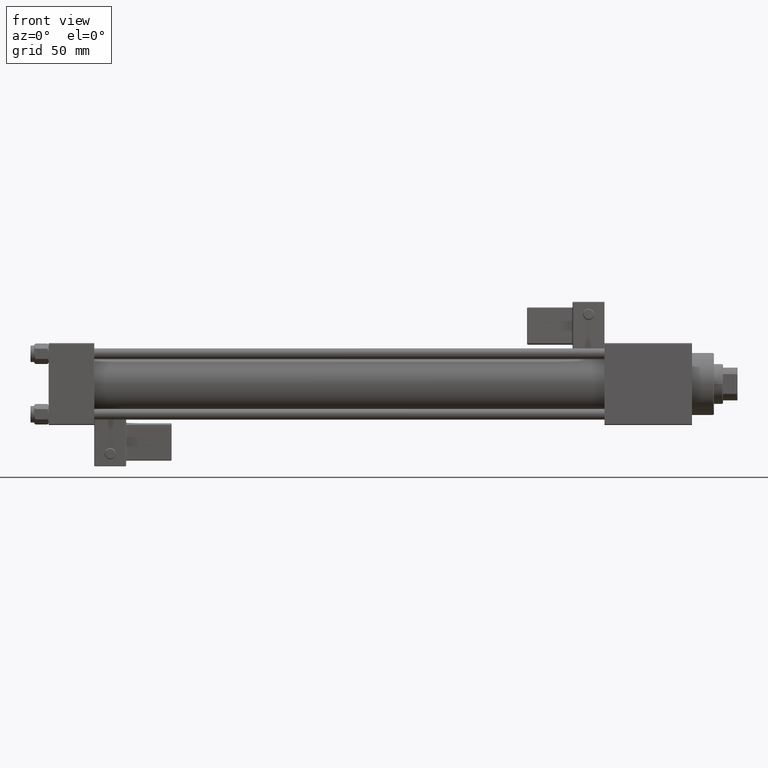
[diagram: clean part render]
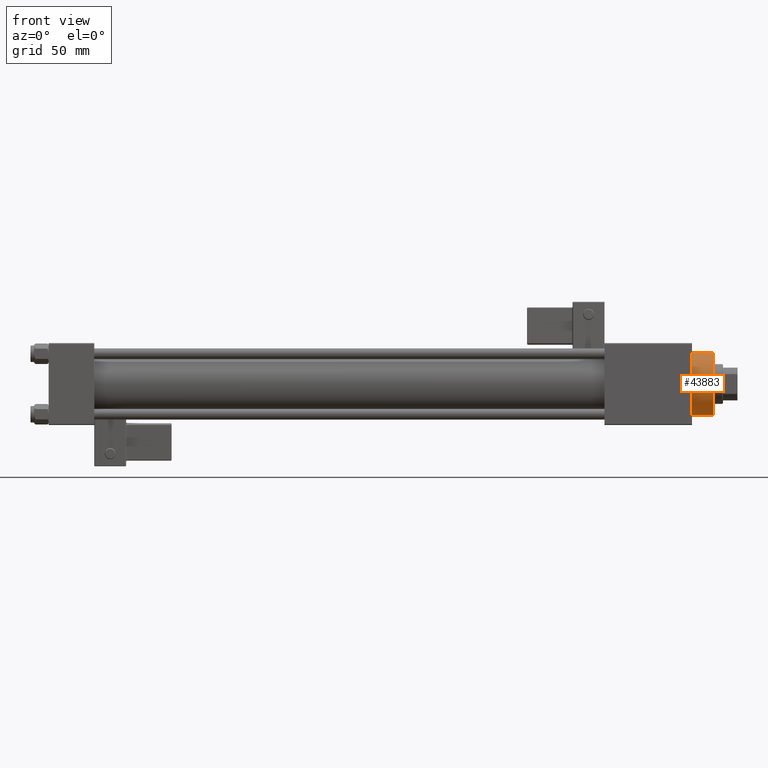
[diagram: same view with one face highlighted and labeled with its STEP entity id]
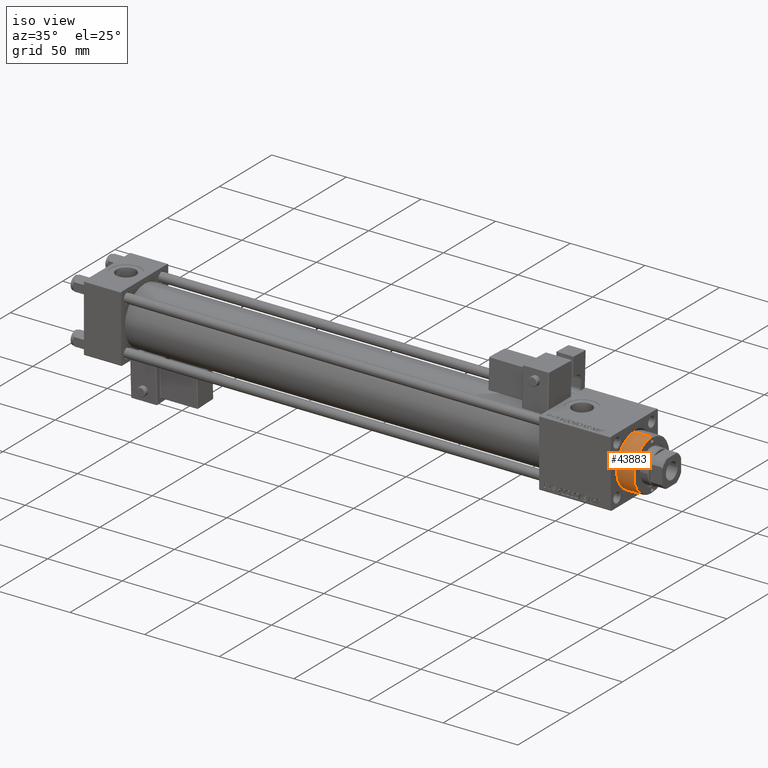
[diagram: same view with one face highlighted and labeled with its STEP entity id]
A machine part, front view. The second image highlights one B-rep face of the part: STEP entity #43883.
A second angle (iso view) of the same face is appended — the face is thin or edge-on in the first view.
In plain terms, the highlighted cylindrical surface (edge-blend (fillet) strip) has radius 17 mm, axis along (-1, -0, -0).
Its self-contained STEP definition (entity closure, byte-faithful):
#3040 = VERTEX_POINT ( 'NONE', #50135 ) ;
#3531 = DIRECTION ( 'NONE',  ( 1.000000000000000000, 0.000000000000000000, 0.000000000000000000 ) ) ;
#4114 = DIRECTION ( 'NONE',  ( -0.000000000000000000, -0.000000000000000000, -1.000000000000000000 ) ) ;
#5173 = DIRECTION ( 'NONE',  ( -1.000000000000000000, 0.000000000000000000, 0.000000000000000000 ) ) ;
#5244 = DIRECTION ( 'NONE',  ( 1.000000000000000000, 0.000000000000000000, 0.000000000000000000 ) ) ;
#5526 = EDGE_CURVE ( 'NONE', #24858, #3040, #16647, .T. ) ;
#8196 = LINE ( 'NONE', #8981, #49361 ) ;
#8981 = CARTESIAN_POINT ( 'NONE',  ( -17.00000000000000000, 0.000000000000000000, 40.70000000000000284 ) ) ;
#9241 = FACE_OUTER_BOUND ( 'NONE', #46963, .T. ) ;
#9569 = DIRECTION ( 'NONE',  ( 0.000000000000000000, 0.000000000000000000, 1.000000000000000000 ) ) ;
#13055 = CARTESIAN_POINT ( 'NONE',  ( 0.000000000000000000, 0.000000000000000000, 40.70000000000000284 ) ) ;
#15098 = ORIENTED_EDGE ( 'NONE', *, *, #33347, .F. ) ;
#16067 = AXIS2_PLACEMENT_3D ( 'NONE', #42474, #9569, #5244 ) ;
#16647 = CIRCLE ( 'NONE', #23592, 17.00000000000000000 ) ;
#17017 = CARTESIAN_POINT ( 'NONE',  ( 17.00000000000000000, 2.081899558550500280E-15, 40.70000000000000284 ) ) ;
#22553 = CYLINDRICAL_SURFACE ( 'NONE', #41905, 17.00000000000000000 ) ;
#23592 = AXIS2_PLACEMENT_3D ( 'NONE', #37504, #29108, #3531 ) ;
#23772 = ORIENTED_EDGE ( 'NONE', *, *, #26989, .T. ) ;
#24858 = VERTEX_POINT ( 'NONE', #31892 ) ;
#26989 = EDGE_CURVE ( 'NONE', #3040, #40254, #8196, .T. ) ;
#29108 = DIRECTION ( 'NONE',  ( 0.000000000000000000, 0.000000000000000000, -1.000000000000000000 ) ) ;
#29670 = DIRECTION ( 'NONE',  ( -0.000000000000000000, -0.000000000000000000, -1.000000000000000000 ) ) ;
#29794 = CARTESIAN_POINT ( 'NONE',  ( -17.00000000000000000, 0.000000000000000000, 28.69999999999999929 ) ) ;
#31892 = CARTESIAN_POINT ( 'NONE',  ( 17.00000000000000000, 2.081899558550500280E-15, 40.19999999999999574 ) ) ;
#32619 = CIRCLE ( 'NONE', #16067, 17.00000000000000000 ) ;
#33347 = EDGE_CURVE ( 'NONE', #24858, #42451, #42554, .T. ) ;
#34428 = DIRECTION ( 'NONE',  ( -0.000000000000000000, -0.000000000000000000, -1.000000000000000000 ) ) ;
#36849 = ORIENTED_EDGE ( 'NONE', *, *, #52896, .T. ) ;
#37504 = CARTESIAN_POINT ( 'NONE',  ( 0.000000000000000000, 0.000000000000000000, 40.19999999999999574 ) ) ;
#40254 = VERTEX_POINT ( 'NONE', #29794 ) ;
#41905 = AXIS2_PLACEMENT_3D ( 'NONE', #13055, #29670, #5173 ) ;
#42451 = VERTEX_POINT ( 'NONE', #45919 ) ;
#42474 = CARTESIAN_POINT ( 'NONE',  ( 0.000000000000000000, 0.000000000000000000, 28.69999999999999929 ) ) ;
#42504 = VECTOR ( 'NONE', #34428, 1000.000000000000000 ) ;
#42554 = LINE ( 'NONE', #17017, #42504 ) ;
#43883 = ADVANCED_FACE ( 'NONE', ( #9241 ), #22553, .T. ) ;
#45919 = CARTESIAN_POINT ( 'NONE',  ( 17.00000000000000000, 2.081899558550500280E-15, 28.69999999999999929 ) ) ;
#46899 = ORIENTED_EDGE ( 'NONE', *, *, #5526, .T. ) ;
#46963 = EDGE_LOOP ( 'NONE', ( #15098, #46899, #23772, #36849 ) ) ;
#49361 = VECTOR ( 'NONE', #4114, 1000.000000000000000 ) ;
#50135 = CARTESIAN_POINT ( 'NONE',  ( -17.00000000000000000, 0.000000000000000000, 40.19999999999999574 ) ) ;
#52896 = EDGE_CURVE ( 'NONE', #40254, #42451, #32619, .T. ) ;